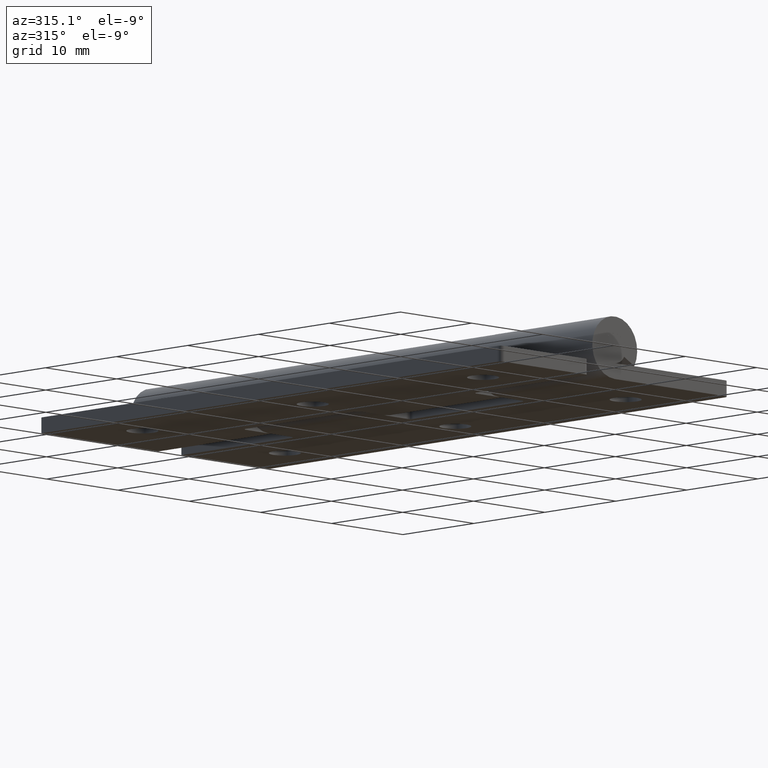
[diagram: clean part render]
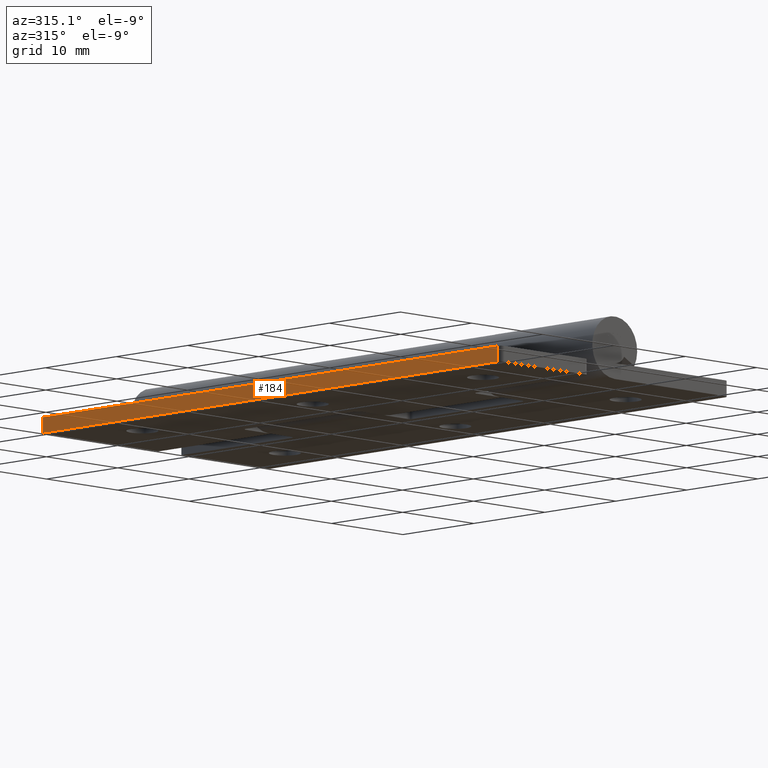
[diagram: same view with one face highlighted and labeled with its STEP entity id]
A machine part, auxiliary view. The second image highlights one B-rep face of the part: STEP entity #184.
In plain terms, the highlighted planar face has unit normal (1, 0, 0).
Its self-contained STEP definition (entity closure, byte-faithful):
#184=ADVANCED_FACE('',(#569),#568,.F.);
#568=PLANE('',#1008);
#569=FACE_OUTER_BOUND('',#1009,.T.);
#1005=CARTESIAN_POINT('',(-1.59999999998E+01,-5.89999999997E+00,-1.34000020003E+00));
#1006=DIRECTION('',(1.00000000000E+00,-0.00000000000E+00,1.56342148700E-12));
#1007=DIRECTION('',(1.56342148700E-12,0.00000000000E+00,-1.00000000000E+00));
#1008=AXIS2_PLACEMENT_3D('',#1005,#1006,#1007);
#1009=EDGE_LOOP('',(#1339,#1340,#1341,#1342));
#1339=ORIENTED_EDGE('',*,*,#1576,.F.);
#1340=ORIENTED_EDGE('',*,*,#1577,.T.);
#1341=ORIENTED_EDGE('',*,*,#1578,.T.);
#1342=ORIENTED_EDGE('',*,*,#1549,.F.);
#1549=EDGE_CURVE('',#2229,#2237,#2238,.T.);
#1576=EDGE_CURVE('',#2420,#2229,#2421,.T.);
#1577=EDGE_CURVE('',#2420,#2427,#2428,.T.);
#1578=EDGE_CURVE('',#2427,#2237,#2434,.T.);
#2229=VERTEX_POINT('',#3068);
#2237=VERTEX_POINT('',#3074);
#2238=LINE('',#3075,#3076);
#2420=VERTEX_POINT('',#3188);
#2421=LINE('',#3189,#3190);
#2427=VERTEX_POINT('',#3192);
#2428=LINE('',#3193,#3194);
#2434=LINE('',#3196,#3197);
#3068=CARTESIAN_POINT('',(-1.59999999998E+01,6.45000000000E+01,-1.50000000003E+00));
#3074=CARTESIAN_POINT('',(-1.59999999999E+01,5.00000000025E-01,-1.50000000003E+00));
#3075=CARTESIAN_POINT('',(-1.59999999998E+01,6.45000000000E+01,-1.50000000003E+00));
#3076=VECTOR('',#3077,6.40000000000E+01);
#3077=DIRECTION('',(0.00000000000E+00,-1.00000000000E+00,0.00000000000E+00));
#3188=CARTESIAN_POINT('',(-1.59999999998E+01,6.45000000000E+01,-3.09999800001E+00));
#3189=CARTESIAN_POINT('',(-1.59999999998E+01,6.45000000000E+01,-3.09999800001E+00));
#3190=VECTOR('',#3191,1.59999799999E+00);
#3191=DIRECTION('',(0.00000000000E+00,0.00000000000E+00,1.00000000000E+00));
#3192=CARTESIAN_POINT('',(-1.59999999999E+01,5.00000000025E-01,-3.09999800001E+00));
#3193=CARTESIAN_POINT('',(-1.59999999998E+01,6.45000000000E+01,-3.09999800003E+00));
#3194=VECTOR('',#3195,6.40000000000E+01);
#3195=DIRECTION('',(0.00000000000E+00,-1.00000000000E+00,0.00000000000E+00));
#3196=CARTESIAN_POINT('',(-1.59999999999E+01,5.00000000025E-01,-3.09999800001E+00));
#3197=VECTOR('',#3198,1.59999799999E+00);
#3198=DIRECTION('',(0.00000000000E+00,0.00000000000E+00,1.00000000000E+00));